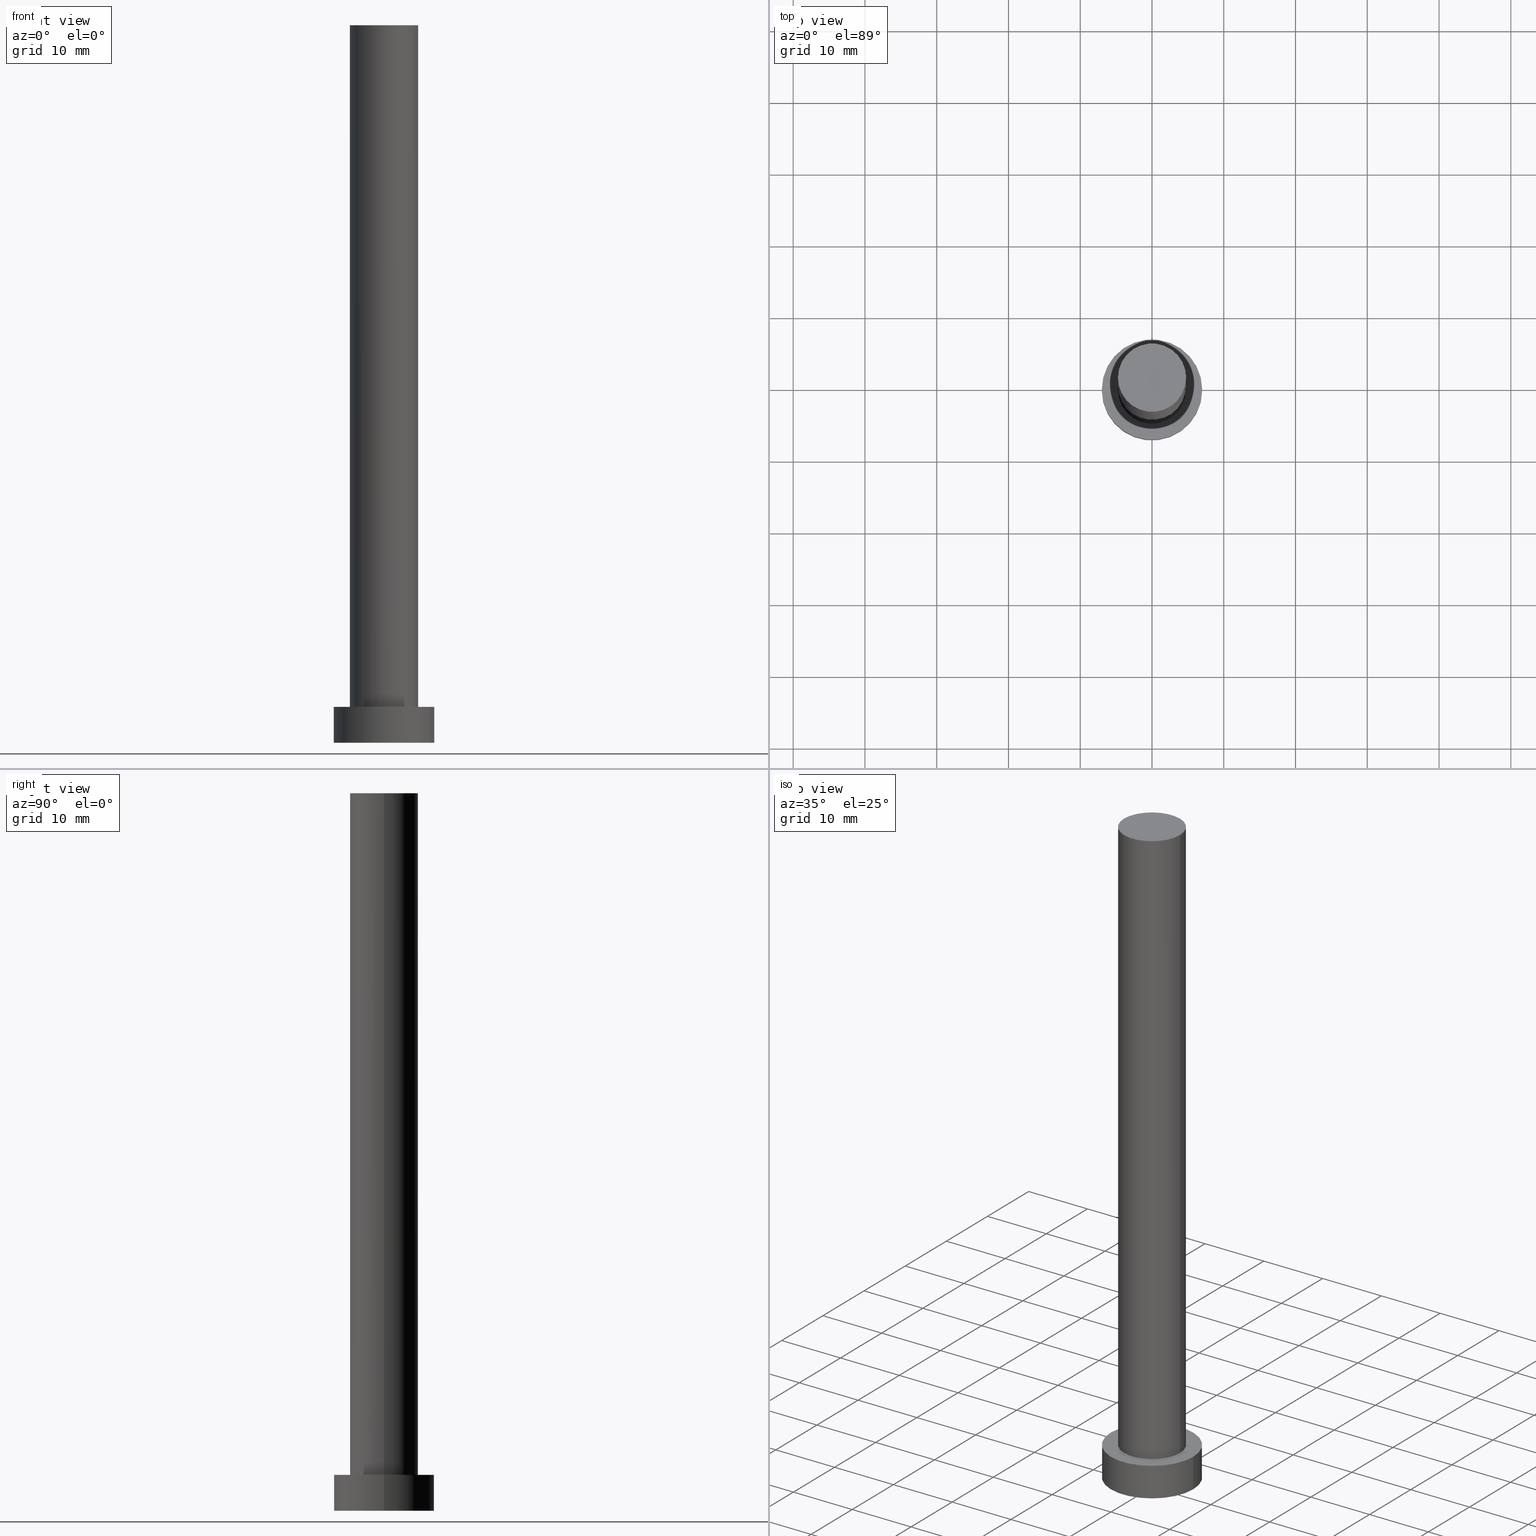
[diagram: canonical four-view strip — front | top / right | iso, engineering-drawing reading convention]
A machine part, canonical four-view strip (front | top / right | iso — engineering-drawing reading convention). The complete STEP part file that produces these views, byte-faithful:
ISO-10303-21;
HEADER;
FILE_DESCRIPTION (( 'STEP AP203' ),
    '1' );
FILE_NAME ('ccc7.STEP',
    '2026-02-06T12:38:21',
    ( '' ),
    ( '' ),
    'SwSTEP 2.0',
    'SolidWorks 2019',
    '' );
FILE_SCHEMA (( 'CONFIG_CONTROL_DESIGN' ));
ENDSEC;

DATA;
#1 = COORDINATED_UNIVERSAL_TIME_OFFSET ( 1, 0, .AHEAD. ) ;
#2 = PRODUCT_DEFINITION_FORMATION_WITH_SPECIFIED_SOURCE ( 'LIBOVOLN�', '', #247, .NOT_KNOWN. ) ;
#3 = DATE_AND_TIME ( #237, #253 ) ;
#4 = VERTEX_POINT ( 'NONE', #152 ) ;
#5 = CIRCLE ( 'NONE', #33, 4.750000000000000888 ) ;
#6 = LOCAL_TIME ( 13, 38, 21.00000000000000000, #81 ) ;
#7 = CC_DESIGN_PERSON_AND_ORGANIZATION_ASSIGNMENT ( #124, #162, ( #163 ) ) ;
#8 = EDGE_CURVE ( 'NONE', #106, #131, #111, .T. ) ;
#9 = ORIENTED_EDGE ( 'NONE', *, *, #56, .T. ) ;
#10 = ORIENTED_EDGE ( 'NONE', *, *, #8, .T. ) ;
#11 = PLANE ( 'NONE',  #23 ) ;
#12 = DATE_AND_TIME ( #138, #18 ) ;
#13 = DIRECTION ( 'NONE',  ( -0.000000000000000000, -0.000000000000000000, -1.000000000000000000 ) ) ;
#14 = EDGE_LOOP ( 'NONE', ( #89, #238, #57, #93 ) ) ;
#15 = PERSON_AND_ORGANIZATION ( #88, #79 ) ;
#16 = FACE_OUTER_BOUND ( 'NONE', #109, .T. ) ;
#17 = ADVANCED_BREP_SHAPE_REPRESENTATION ( 'ccc7', ( #178, #206 ), #128 ) ;
#18 = LOCAL_TIME ( 13, 38, 21.00000000000000000, #113 ) ;
#19 = CYLINDRICAL_SURFACE ( 'NONE', #133, 7.000000000000000000 ) ;
#20 = DATE_AND_TIME ( #137, #6 ) ;
#21 = DIRECTION ( 'NONE',  ( -0.000000000000000000, -0.000000000000000000, -1.000000000000000000 ) ) ;
#22 = LINE ( 'NONE', #99, #240 ) ;
#23 = AXIS2_PLACEMENT_3D ( 'NONE', #167, #76, #191 ) ;
#24 = EDGE_CURVE ( 'NONE', #202, #146, #55, .T. ) ;
#25 = APPROVAL_PERSON_ORGANIZATION ( #38, #49, #94 ) ;
#26 =( NAMED_UNIT ( * ) SI_UNIT ( $, .STERADIAN. ) SOLID_ANGLE_UNIT ( ) );
#27 = MECHANICAL_CONTEXT ( 'NONE', #187, 'mechanical' ) ;
#28 = DATE_AND_TIME ( #85, #175 ) ;
#29 = PRODUCT_RELATED_PRODUCT_CATEGORY ( 'detail', '', ( #247 ) ) ;
#30 = VECTOR ( 'NONE', #84, 1000.000000000000000 ) ;
#31 = DATE_AND_TIME ( #126, #227 ) ;
#32 = ADVANCED_FACE ( 'NONE', ( #164 ), #220, .T. ) ;
#33 = AXIS2_PLACEMENT_3D ( 'NONE', #251, #82, #98 ) ;
#34 = VERTEX_POINT ( 'NONE', #207 ) ;
#35 = ORIENTED_EDGE ( 'NONE', *, *, #74, .T. ) ;
#36 = FACE_OUTER_BOUND ( 'NONE', #90, .T. ) ;
#37 = AXIS2_PLACEMENT_3D ( 'NONE', #159, #231, #65 ) ;
#38 = PERSON_AND_ORGANIZATION ( #88, #79 ) ;
#39 = ORIENTED_EDGE ( 'NONE', *, *, #242, .F. ) ;
#40 = CARTESIAN_POINT ( 'NONE',  ( 0.000000000000000000, 0.000000000000000000, 0.000000000000000000 ) ) ;
#41 = DESIGN_CONTEXT ( 'detailed design', #234, 'design' ) ;
#42 = PRODUCT_DEFINITION_SHAPE ( 'NONE', 'NONE',  #163 ) ;
#43 = CARTESIAN_POINT ( 'NONE',  ( -4.750000000000000888, 0.000000000000000000, 100.0000000000000000 ) ) ;
#44 = PERSON_AND_ORGANIZATION_ROLE ( 'creator' ) ;
#45 = PLANE ( 'NONE',  #70 ) ;
#46 = CARTESIAN_POINT ( 'NONE',  ( 0.000000000000000000, 0.000000000000000000, 0.000000000000000000 ) ) ;
#47 = FACE_OUTER_BOUND ( 'NONE', #149, .T. ) ;
#48 = AXIS2_PLACEMENT_3D ( 'NONE', #112, #130, #228 ) ;
#49 = APPROVAL ( #186, 'NEUR�EN�' ) ;
#50 = PERSON_AND_ORGANIZATION ( #88, #79 ) ;
#51 = APPROVAL_ROLE ( '' ) ;
#52 = CC_DESIGN_APPROVAL ( #54, ( #163 ) ) ;
#53 = ORIENTED_EDGE ( 'NONE', *, *, #24, .F. ) ;
#54 = APPROVAL ( #143, 'NEUR�EN�' ) ;
#55 = LINE ( 'NONE', #150, #213 ) ;
#56 = EDGE_CURVE ( 'NONE', #34, #202, #239, .T. ) ;
#57 = ORIENTED_EDGE ( 'NONE', *, *, #24, .T. ) ;
#58 = DIRECTION ( 'NONE',  ( -0.000000000000000000, -0.000000000000000000, -1.000000000000000000 ) ) ;
#59 = CC_DESIGN_PERSON_AND_ORGANIZATION_ASSIGNMENT ( #132, #44, ( #2 ) ) ;
#60 = ORIENTED_EDGE ( 'NONE', *, *, #166, .T. ) ;
#61 = CARTESIAN_POINT ( 'NONE',  ( -7.000000000000000000, 0.000000000000000000, 5.000000000000000000 ) ) ;
#62 = CC_DESIGN_PERSON_AND_ORGANIZATION_ASSIGNMENT ( #151, #185, ( #135 ) ) ;
#63 = AXIS2_PLACEMENT_3D ( 'NONE', #193, #255, #158 ) ;
#64 = CYLINDRICAL_SURFACE ( 'NONE', #144, 4.750000000000000888 ) ;
#65 = DIRECTION ( 'NONE',  ( 1.000000000000000000, 0.000000000000000000, 0.000000000000000000 ) ) ;
#66 = APPROVAL ( #104, 'NEUR�EN�' ) ;
#67 = PERSON_AND_ORGANIZATION ( #88, #79 ) ;
#68 = CC_DESIGN_PERSON_AND_ORGANIZATION_ASSIGNMENT ( #50, #179, ( #247 ) ) ;
#69 = VERTEX_POINT ( 'NONE', #243 ) ;
#70 = AXIS2_PLACEMENT_3D ( 'NONE', #142, #233, #114 ) ;
#71 = CC_DESIGN_APPROVAL ( #49, ( #135 ) ) ;
#72 = CIRCLE ( 'NONE', #241, 7.000000000000000000 ) ;
#73 = ORIENTED_EDGE ( 'NONE', *, *, #56, .F. ) ;
#74 = EDGE_CURVE ( 'NONE', #106, #136, #72, .T. ) ;
#75 = ORIENTED_EDGE ( 'NONE', *, *, #225, .T. ) ;
#76 = DIRECTION ( 'NONE',  ( 0.000000000000000000, 0.000000000000000000, 1.000000000000000000 ) ) ;
#77 = EDGE_LOOP ( 'NONE', ( #129, #39 ) ) ;
#78 = ORIENTED_EDGE ( 'NONE', *, *, #188, .T. ) ;
#79 = ORGANIZATION ( 'NEUR�EN�', 'NEUR�EN�', '' ) ;
#80 = FACE_OUTER_BOUND ( 'NONE', #107, .T. ) ;
#81 = COORDINATED_UNIVERSAL_TIME_OFFSET ( 1, 0, .AHEAD. ) ;
#82 = DIRECTION ( 'NONE',  ( 0.000000000000000000, 0.000000000000000000, 1.000000000000000000 ) ) ;
#83 =( LENGTH_UNIT ( ) NAMED_UNIT ( * ) SI_UNIT ( .MILLI., .METRE. ) );
#84 = DIRECTION ( 'NONE',  ( -0.000000000000000000, -0.000000000000000000, -1.000000000000000000 ) ) ;
#85 = CALENDAR_DATE ( 2026, 6, 2 ) ;
#86 = VECTOR ( 'NONE', #13, 1000.000000000000000 ) ;
#87 = CIRCLE ( 'NONE', #110, 4.750000000000000888 ) ;
#88 = PERSON ( 'NEUR�EN�', 'NEUR�EN�', 'NEUR�EN�', ('NEUR�EN�'), ('NEUR�EN�'), ('NEUR�EN�') ) ;
#89 = ORIENTED_EDGE ( 'NONE', *, *, #148, .F. ) ;
#90 = EDGE_LOOP ( 'NONE', ( #201, #9 ) ) ;
#91 = DIRECTION ( 'NONE',  ( 0.000000000000000000, 0.000000000000000000, 1.000000000000000000 ) ) ;
#92 = CARTESIAN_POINT ( 'NONE',  ( 0.000000000000000000, 0.000000000000000000, 5.000000000000000000 ) ) ;
#93 = ORIENTED_EDGE ( 'NONE', *, *, #102, .T. ) ;
#94 = APPROVAL_ROLE ( '' ) ;
#95 = DIRECTION ( 'NONE',  ( 1.000000000000000000, 0.000000000000000000, 0.000000000000000000 ) ) ;
#96 = CIRCLE ( 'NONE', #37, 4.750000000000000888 ) ;
#97 = CARTESIAN_POINT ( 'NONE',  ( 7.000000000000000000, 8.572527594031473190E-16, 0.000000000000000000 ) ) ;
#98 = DIRECTION ( 'NONE',  ( 1.000000000000000000, 0.000000000000000000, 0.000000000000000000 ) ) ;
#99 = CARTESIAN_POINT ( 'NONE',  ( 4.750000000000000888, 5.817072295949928412E-16, 100.0000000000000000 ) ) ;
#100 = APPROVAL_PERSON_ORGANIZATION ( #199, #54, #51 ) ;
#101 = DIRECTION ( 'NONE',  ( -0.000000000000000000, -0.000000000000000000, -1.000000000000000000 ) ) ;
#102 = EDGE_CURVE ( 'NONE', #146, #69, #87, .T. ) ;
#103 = CARTESIAN_POINT ( 'NONE',  ( 0.000000000000000000, 0.000000000000000000, 0.000000000000000000 ) ) ;
#104 = APPROVAL_STATUS ( 'not_yet_approved' ) ;
#105 = COORDINATED_UNIVERSAL_TIME_OFFSET ( 1, 0, .AHEAD. ) ;
#106 = VERTEX_POINT ( 'NONE', #168 ) ;
#107 = EDGE_LOOP ( 'NONE', ( #73, #182, #147, #53 ) ) ;
#108 = DIRECTION ( 'NONE',  ( -0.000000000000000000, -0.000000000000000000, -1.000000000000000000 ) ) ;
#109 = EDGE_LOOP ( 'NONE', ( #224, #244 ) ) ;
#110 = AXIS2_PLACEMENT_3D ( 'NONE', #169, #222, #203 ) ;
#111 = LINE ( 'NONE', #184, #86 ) ;
#112 = CARTESIAN_POINT ( 'NONE',  ( 0.000000000000000000, 0.000000000000000000, 100.0000000000000000 ) ) ;
#113 = COORDINATED_UNIVERSAL_TIME_OFFSET ( 1, 0, .AHEAD. ) ;
#114 = DIRECTION ( 'NONE',  ( 1.000000000000000000, 0.000000000000000000, -0.000000000000000000 ) ) ;
#115 = PLANE ( 'NONE',  #249 ) ;
#116 = CC_DESIGN_DATE_AND_TIME_ASSIGNMENT ( #3, #145, ( #163 ) ) ;
#117 = SECURITY_CLASSIFICATION_LEVEL ( 'unclassified' ) ;
#118 = ADVANCED_FACE ( 'NONE', ( #36 ), #11, .T. ) ;
#119 = DIRECTION ( 'NONE',  ( 0.000000000000000000, 0.000000000000000000, 1.000000000000000000 ) ) ;
#120 = CARTESIAN_POINT ( 'NONE',  ( 0.000000000000000000, 0.000000000000000000, 0.000000000000000000 ) ) ;
#121 = CC_DESIGN_PERSON_AND_ORGANIZATION_ASSIGNMENT ( #15, #190, ( #2 ) ) ;
#122 = ADVANCED_FACE ( 'NONE', ( #177 ), #19, .T. ) ;
#123 = AXIS2_PLACEMENT_3D ( 'NONE', #194, #211, #212 ) ;
#124 = PERSON_AND_ORGANIZATION ( #88, #79 ) ;
#125 = APPLICATION_PROTOCOL_DEFINITION ( 'international standard', 'config_control_design', 1994, #234 ) ;
#126 = CALENDAR_DATE ( 2026, 6, 2 ) ;
#127 = ADVANCED_FACE ( 'NONE', ( #209, #252 ), #45, .T. ) ;
#128 =( GEOMETRIC_REPRESENTATION_CONTEXT ( 3 ) GLOBAL_UNCERTAINTY_ASSIGNED_CONTEXT ( ( #141 ) ) GLOBAL_UNIT_ASSIGNED_CONTEXT ( ( #83, #197, #26 ) ) REPRESENTATION_CONTEXT ( 'NONE', 'WORKASPACE' ) );
#129 = ORIENTED_EDGE ( 'NONE', *, *, #102, .F. ) ;
#130 = DIRECTION ( 'NONE',  ( 0.000000000000000000, 0.000000000000000000, 1.000000000000000000 ) ) ;
#131 = VERTEX_POINT ( 'NONE', #97 ) ;
#132 = PERSON_AND_ORGANIZATION ( #88, #79 ) ;
#133 = AXIS2_PLACEMENT_3D ( 'NONE', #155, #101, #229 ) ;
#134 = CIRCLE ( 'NONE', #226, 7.000000000000000000 ) ;
#135 = SECURITY_CLASSIFICATION ( '', '', #117 ) ;
#136 = VERTEX_POINT ( 'NONE', #61 ) ;
#137 = CALENDAR_DATE ( 2026, 6, 2 ) ;
#138 = CALENDAR_DATE ( 2026, 6, 2 ) ;
#139 = CC_DESIGN_DATE_AND_TIME_ASSIGNMENT ( #12, #192, ( #135 ) ) ;
#140 = DIRECTION ( 'NONE',  ( -0.000000000000000000, -0.000000000000000000, -1.000000000000000000 ) ) ;
#141 = UNCERTAINTY_MEASURE_WITH_UNIT (LENGTH_MEASURE( 1.000000000000000082E-05 ), #83, 'distance_accuracy_value', 'NONE');
#142 = CARTESIAN_POINT ( 'NONE',  ( 0.000000000000000000, 0.000000000000000000, 5.000000000000000000 ) ) ;
#143 = APPROVAL_STATUS ( 'not_yet_approved' ) ;
#144 = AXIS2_PLACEMENT_3D ( 'NONE', #250, #21, #254 ) ;
#145 = DATE_TIME_ROLE ( 'creation_date' ) ;
#146 = VERTEX_POINT ( 'NONE', #174 ) ;
#147 = ORIENTED_EDGE ( 'NONE', *, *, #242, .T. ) ;
#148 = EDGE_CURVE ( 'NONE', #34, #69, #22, .T. ) ;
#149 = EDGE_LOOP ( 'NONE', ( #218, #223, #75, #181 ) ) ;
#150 = CARTESIAN_POINT ( 'NONE',  ( -4.750000000000000888, 0.000000000000000000, 100.0000000000000000 ) ) ;
#151 = PERSON_AND_ORGANIZATION ( #88, #79 ) ;
#152 = CARTESIAN_POINT ( 'NONE',  ( -7.000000000000000000, 0.000000000000000000, 0.000000000000000000 ) ) ;
#153 = CC_DESIGN_SECURITY_CLASSIFICATION ( #135, ( #2 ) ) ;
#154 = CARTESIAN_POINT ( 'NONE',  ( 0.000000000000000000, 0.000000000000000000, 100.0000000000000000 ) ) ;
#155 = CARTESIAN_POINT ( 'NONE',  ( 0.000000000000000000, 0.000000000000000000, 5.000000000000000000 ) ) ;
#156 = CARTESIAN_POINT ( 'NONE',  ( -7.000000000000000000, 0.000000000000000000, 5.000000000000000000 ) ) ;
#157 = AXIS2_PLACEMENT_3D ( 'NONE', #40, #176, #95 ) ;
#158 = DIRECTION ( 'NONE',  ( -1.000000000000000000, 0.000000000000000000, 0.000000000000000000 ) ) ;
#159 = CARTESIAN_POINT ( 'NONE',  ( 0.000000000000000000, 0.000000000000000000, 5.000000000000000000 ) ) ;
#160 = DIRECTION ( 'NONE',  ( 1.000000000000000000, 0.000000000000000000, 0.000000000000000000 ) ) ;
#161 = CIRCLE ( 'NONE', #123, 7.000000000000000000 ) ;
#162 = PERSON_AND_ORGANIZATION_ROLE ( 'creator' ) ;
#163 = PRODUCT_DEFINITION ( 'NEZN�M�', '', #2, #41 ) ;
#164 = FACE_OUTER_BOUND ( 'NONE', #14, .T. ) ;
#165 = DIRECTION ( 'NONE',  ( -1.000000000000000000, 0.000000000000000000, 0.000000000000000000 ) ) ;
#166 = EDGE_CURVE ( 'NONE', #131, #4, #134, .T. ) ;
#167 = CARTESIAN_POINT ( 'NONE',  ( 0.000000000000000000, 0.000000000000000000, 100.0000000000000000 ) ) ;
#168 = CARTESIAN_POINT ( 'NONE',  ( 7.000000000000000000, 8.572527594031473190E-16, 5.000000000000000000 ) ) ;
#169 = CARTESIAN_POINT ( 'NONE',  ( 0.000000000000000000, 0.000000000000000000, 5.000000000000000000 ) ) ;
#170 = APPROVAL_DATE_TIME ( #20, #49 ) ;
#171 = DIRECTION ( 'NONE',  ( 1.000000000000000000, 0.000000000000000000, -0.000000000000000000 ) ) ;
#172 = APPROVAL_DATE_TIME ( #31, #66 ) ;
#173 = DIRECTION ( 'NONE',  ( 0.000000000000000000, 0.000000000000000000, 1.000000000000000000 ) ) ;
#174 = CARTESIAN_POINT ( 'NONE',  ( -4.750000000000000888, 0.000000000000000000, 5.000000000000000000 ) ) ;
#175 = LOCAL_TIME ( 13, 38, 21.00000000000000000, #1 ) ;
#176 = DIRECTION ( 'NONE',  ( 0.000000000000000000, 0.000000000000000000, 1.000000000000000000 ) ) ;
#177 = FACE_OUTER_BOUND ( 'NONE', #245, .T. ) ;
#178 = MANIFOLD_SOLID_BREP ( 'P�idat vysunut�m3', #205 ) ;
#179 = PERSON_AND_ORGANIZATION_ROLE ( 'design_owner' ) ;
#180 = APPROVAL_ROLE ( '' ) ;
#181 = ORIENTED_EDGE ( 'NONE', *, *, #198, .T. ) ;
#182 = ORIENTED_EDGE ( 'NONE', *, *, #148, .T. ) ;
#183 = DIRECTION ( 'NONE',  ( 1.000000000000000000, 0.000000000000000000, 0.000000000000000000 ) ) ;
#184 = CARTESIAN_POINT ( 'NONE',  ( 7.000000000000000000, 8.572527594031473190E-16, 5.000000000000000000 ) ) ;
#185 = PERSON_AND_ORGANIZATION_ROLE ( 'classification_officer' ) ;
#186 = APPROVAL_STATUS ( 'not_yet_approved' ) ;
#187 = APPLICATION_CONTEXT ( 'configuration controlled 3d designs of mechanical parts and assemblies' ) ;
#188 = EDGE_CURVE ( 'NONE', #136, #106, #161, .T. ) ;
#189 = DIRECTION ( 'NONE',  ( 1.000000000000000000, 0.000000000000000000, 0.000000000000000000 ) ) ;
#190 = PERSON_AND_ORGANIZATION_ROLE ( 'design_supplier' ) ;
#191 = DIRECTION ( 'NONE',  ( 1.000000000000000000, 0.000000000000000000, -0.000000000000000000 ) ) ;
#192 = DATE_TIME_ROLE ( 'classification_date' ) ;
#193 = CARTESIAN_POINT ( 'NONE',  ( 0.000000000000000000, 0.000000000000000000, 5.000000000000000000 ) ) ;
#194 = CARTESIAN_POINT ( 'NONE',  ( 0.000000000000000000, 0.000000000000000000, 5.000000000000000000 ) ) ;
#195 = AXIS2_PLACEMENT_3D ( 'NONE', #154, #108, #165 ) ;
#196 = CC_DESIGN_APPROVAL ( #66, ( #2 ) ) ;
#197 =( NAMED_UNIT ( * ) PLANE_ANGLE_UNIT ( ) SI_UNIT ( $, .RADIAN. ) );
#198 = EDGE_CURVE ( 'NONE', #4, #131, #232, .T. ) ;
#199 = PERSON_AND_ORGANIZATION ( #88, #79 ) ;
#200 = DIRECTION ( 'NONE',  ( 0.000000000000000000, 0.000000000000000000, 1.000000000000000000 ) ) ;
#201 = ORIENTED_EDGE ( 'NONE', *, *, #216, .T. ) ;
#202 = VERTEX_POINT ( 'NONE', #43 ) ;
#203 = DIRECTION ( 'NONE',  ( 1.000000000000000000, 0.000000000000000000, 0.000000000000000000 ) ) ;
#204 = ORIENTED_EDGE ( 'NONE', *, *, #74, .F. ) ;
#205 = CLOSED_SHELL ( 'NONE', ( #215, #122, #219, #127, #210, #32, #118 ) ) ;
#206 = AXIS2_PLACEMENT_3D ( 'NONE', #103, #200, #160 ) ;
#207 = CARTESIAN_POINT ( 'NONE',  ( 4.750000000000000888, 5.817072295949928412E-16, 100.0000000000000000 ) ) ;
#208 = CYLINDRICAL_SURFACE ( 'NONE', #63, 7.000000000000000000 ) ;
#209 = FACE_BOUND ( 'NONE', #77, .T. ) ;
#210 = ADVANCED_FACE ( 'NONE', ( #16 ), #115, .F. ) ;
#211 = DIRECTION ( 'NONE',  ( 0.000000000000000000, 0.000000000000000000, 1.000000000000000000 ) ) ;
#212 = DIRECTION ( 'NONE',  ( 1.000000000000000000, 0.000000000000000000, 0.000000000000000000 ) ) ;
#213 = VECTOR ( 'NONE', #58, 1000.000000000000000 ) ;
#214 = APPROVAL_DATE_TIME ( #28, #54 ) ;
#215 = ADVANCED_FACE ( 'NONE', ( #80 ), #64, .T. ) ;
#216 = EDGE_CURVE ( 'NONE', #202, #34, #5, .T. ) ;
#217 = APPLICATION_PROTOCOL_DEFINITION ( 'international standard', 'config_control_design', 1994, #187 ) ;
#218 = ORIENTED_EDGE ( 'NONE', *, *, #8, .F. ) ;
#219 = ADVANCED_FACE ( 'NONE', ( #47 ), #208, .T. ) ;
#220 = CYLINDRICAL_SURFACE ( 'NONE', #195, 4.750000000000000888 ) ;
#221 = APPROVAL_PERSON_ORGANIZATION ( #67, #66, #180 ) ;
#222 = DIRECTION ( 'NONE',  ( 0.000000000000000000, 0.000000000000000000, 1.000000000000000000 ) ) ;
#223 = ORIENTED_EDGE ( 'NONE', *, *, #188, .F. ) ;
#224 = ORIENTED_EDGE ( 'NONE', *, *, #198, .F. ) ;
#225 = EDGE_CURVE ( 'NONE', #136, #4, #235, .T. ) ;
#226 = AXIS2_PLACEMENT_3D ( 'NONE', #120, #119, #189 ) ;
#227 = LOCAL_TIME ( 13, 38, 21.00000000000000000, #105 ) ;
#228 = DIRECTION ( 'NONE',  ( 1.000000000000000000, 0.000000000000000000, 0.000000000000000000 ) ) ;
#229 = DIRECTION ( 'NONE',  ( -1.000000000000000000, 0.000000000000000000, 0.000000000000000000 ) ) ;
#230 = SHAPE_DEFINITION_REPRESENTATION ( #42, #17 ) ;
#231 = DIRECTION ( 'NONE',  ( 0.000000000000000000, 0.000000000000000000, 1.000000000000000000 ) ) ;
#232 = CIRCLE ( 'NONE', #157, 7.000000000000000000 ) ;
#233 = DIRECTION ( 'NONE',  ( 0.000000000000000000, 0.000000000000000000, 1.000000000000000000 ) ) ;
#234 = APPLICATION_CONTEXT ( 'configuration controlled 3d designs of mechanical parts and assemblies' ) ;
#235 = LINE ( 'NONE', #156, #30 ) ;
#236 = COORDINATED_UNIVERSAL_TIME_OFFSET ( 1, 0, .AHEAD. ) ;
#237 = CALENDAR_DATE ( 2026, 6, 2 ) ;
#238 = ORIENTED_EDGE ( 'NONE', *, *, #216, .F. ) ;
#239 = CIRCLE ( 'NONE', #48, 4.750000000000000888 ) ;
#240 = VECTOR ( 'NONE', #140, 1000.000000000000000 ) ;
#241 = AXIS2_PLACEMENT_3D ( 'NONE', #92, #91, #183 ) ;
#242 = EDGE_CURVE ( 'NONE', #69, #146, #96, .T. ) ;
#243 = CARTESIAN_POINT ( 'NONE',  ( 4.750000000000000888, 5.817072295949928412E-16, 5.000000000000000000 ) ) ;
#244 = ORIENTED_EDGE ( 'NONE', *, *, #166, .F. ) ;
#245 = EDGE_LOOP ( 'NONE', ( #204, #10, #60, #248 ) ) ;
#246 = EDGE_LOOP ( 'NONE', ( #78, #35 ) ) ;
#247 = PRODUCT ( 'ccc7', 'ccc7', '', ( #27 ) ) ;
#248 = ORIENTED_EDGE ( 'NONE', *, *, #225, .F. ) ;
#249 = AXIS2_PLACEMENT_3D ( 'NONE', #46, #173, #171 ) ;
#250 = CARTESIAN_POINT ( 'NONE',  ( 0.000000000000000000, 0.000000000000000000, 100.0000000000000000 ) ) ;
#251 = CARTESIAN_POINT ( 'NONE',  ( 0.000000000000000000, 0.000000000000000000, 100.0000000000000000 ) ) ;
#252 = FACE_OUTER_BOUND ( 'NONE', #246, .T. ) ;
#253 = LOCAL_TIME ( 13, 38, 21.00000000000000000, #236 ) ;
#254 = DIRECTION ( 'NONE',  ( -1.000000000000000000, 0.000000000000000000, 0.000000000000000000 ) ) ;
#255 = DIRECTION ( 'NONE',  ( -0.000000000000000000, -0.000000000000000000, -1.000000000000000000 ) ) ;
ENDSEC;
END-ISO-10303-21;
